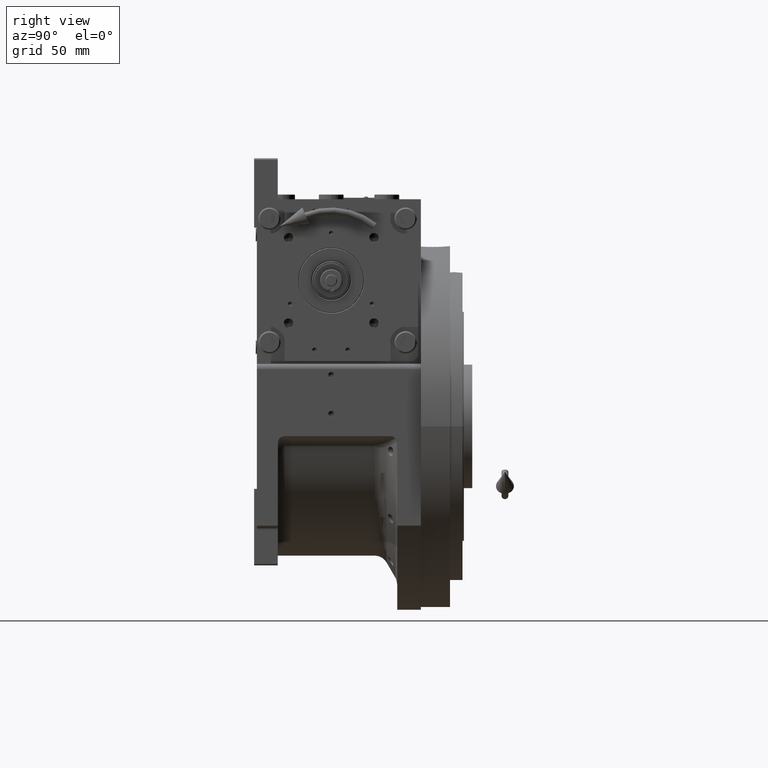
[diagram: clean part render]
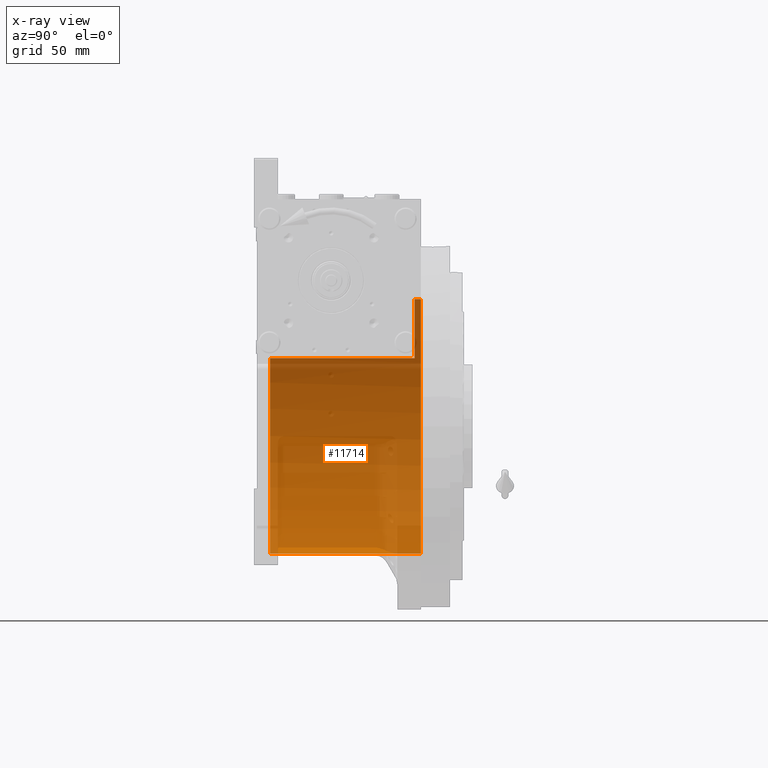
[diagram: x-ray — body ghosted, one internal face saturated and labeled with its STEP entity id]
A machine part, right view, then the same camera in x-ray: the body is ghosted and one INTERNAL B-rep face — a face not visible from any outside direction — is saturated and labeled: STEP entity #11714.
In plain terms, the highlighted cylindrical surface (partial cylindrical patch) has radius 91.5 mm, axis along (0, -1, 0).
Its self-contained STEP definition (entity closure, byte-faithful):
#89 = VERTEX_POINT ( 'NONE', #11666 ) ;
#1930 = DIRECTION ( 'NONE',  ( 0.000000000000000000, 0.000000000000000000, 1.000000000000000000 ) ) ;
#2423 = AXIS2_PLACEMENT_3D ( 'NONE', #13235, #28690, #1930 ) ;
#2748 = EDGE_CURVE ( 'NONE', #89, #67706, #63052, .T. ) ;
#2916 = CARTESIAN_POINT ( 'NONE',  ( -77.27386362800812947, 69.00000000000004263, 48.99999999999998579 ) ) ;
#4924 = ORIENTED_EDGE ( 'NONE', *, *, #24452, .F. ) ;
#5240 = CARTESIAN_POINT ( 'NONE',  ( 0.000000000000000000, 60.00000000000000000, 0.000000000000000000 ) ) ;
#6687 = VERTEX_POINT ( 'NONE', #7376 ) ;
#7376 = CARTESIAN_POINT ( 'NONE',  ( 1.120551821219827868E-14, 64.50000000000000000, 91.50000000000000000 ) ) ;
#7391 = CYLINDRICAL_SURFACE ( 'NONE', #20939, 91.50000000000000000 ) ;
#8017 = CIRCLE ( 'NONE', #47313, 91.50000000000000000 ) ;
#9991 = VECTOR ( 'NONE', #51401, 1000.000000000000000 ) ;
#11165 = CARTESIAN_POINT ( 'NONE',  ( 1.120551821219827868E-14, 60.00000000000000000, 91.50000000000000000 ) ) ;
#11666 = CARTESIAN_POINT ( 'NONE',  ( 0.000000000000000000, -44.00000000000000000, -91.50000000000000000 ) ) ;
#11714 = ADVANCED_FACE ( 'NONE', ( #48911 ), #7391, .F. ) ;
#13235 = CARTESIAN_POINT ( 'NONE',  ( 0.000000000000000000, -44.00000000000000000, 0.000000000000000000 ) ) ;
#20939 = AXIS2_PLACEMENT_3D ( 'NONE', #23207, #28500, #60119 ) ;
#21259 = VECTOR ( 'NONE', #67262, 1000.000000000000000 ) ;
#23207 = CARTESIAN_POINT ( 'NONE',  ( 0.000000000000000000, 69.00000000000004263, 0.000000000000000000 ) ) ;
#24030 = CARTESIAN_POINT ( 'NONE',  ( 0.000000000000000000, 64.50000000000000000, -91.50000000000000000 ) ) ;
#24452 = EDGE_CURVE ( 'NONE', #59586, #89, #59524, .T. ) ;
#24707 = LINE ( 'NONE', #2916, #21259 ) ;
#25153 = CARTESIAN_POINT ( 'NONE',  ( 0.000000000000000000, 64.50000000000000000, 0.000000000000000000 ) ) ;
#28500 = DIRECTION ( 'NONE',  ( 0.000000000000000000, -1.000000000000000000, 0.000000000000000000 ) ) ;
#28690 = DIRECTION ( 'NONE',  ( 0.000000000000000000, 1.000000000000000000, 0.000000000000000000 ) ) ;
#29980 = CARTESIAN_POINT ( 'NONE',  ( 1.120551821219827868E-14, 69.00000000000004263, 91.50000000000000000 ) ) ;
#30282 = VERTEX_POINT ( 'NONE', #32470 ) ;
#30408 = ORIENTED_EDGE ( 'NONE', *, *, #55609, .F. ) ;
#31141 = EDGE_LOOP ( 'NONE', ( #30408, #59172, #38333, #46496, #61209, #4924 ) ) ;
#32470 = CARTESIAN_POINT ( 'NONE',  ( -77.27386362800814368, 60.00000000000000000, 48.99999999999998579 ) ) ;
#34929 = AXIS2_PLACEMENT_3D ( 'NONE', #5240, #63973, #52731 ) ;
#37176 = CIRCLE ( 'NONE', #34929, 91.50000000000000000 ) ;
#38333 = ORIENTED_EDGE ( 'NONE', *, *, #54879, .F. ) ;
#42874 = EDGE_CURVE ( 'NONE', #6687, #60362, #66206, .T. ) ;
#43672 = CARTESIAN_POINT ( 'NONE',  ( -77.27386362800814368, -44.00000000000000000, 49.00000000000000000 ) ) ;
#44084 = DIRECTION ( 'NONE',  ( 0.000000000000000000, -1.000000000000000000, 0.000000000000000000 ) ) ;
#46496 = ORIENTED_EDGE ( 'NONE', *, *, #53131, .F. ) ;
#47313 = AXIS2_PLACEMENT_3D ( 'NONE', #25153, #68042, #55789 ) ;
#48911 = FACE_OUTER_BOUND ( 'NONE', #31141, .T. ) ;
#51401 = DIRECTION ( 'NONE',  ( 0.000000000000000000, -1.000000000000000000, 0.000000000000000000 ) ) ;
#52731 = DIRECTION ( 'NONE',  ( 1.776356839400250465E-15, 0.000000000000000000, -1.000000000000000000 ) ) ;
#52751 = VECTOR ( 'NONE', #44084, 1000.000000000000000 ) ;
#53131 = EDGE_CURVE ( 'NONE', #67706, #30282, #24707, .T. ) ;
#54879 = EDGE_CURVE ( 'NONE', #30282, #60362, #37176, .T. ) ;
#55609 = EDGE_CURVE ( 'NONE', #6687, #59586, #8017, .T. ) ;
#55789 = DIRECTION ( 'NONE',  ( 0.000000000000000000, 0.000000000000000000, 1.000000000000000000 ) ) ;
#58475 = CARTESIAN_POINT ( 'NONE',  ( 0.000000000000000000, 69.00000000000004263, -91.50000000000000000 ) ) ;
#59172 = ORIENTED_EDGE ( 'NONE', *, *, #42874, .T. ) ;
#59524 = LINE ( 'NONE', #58475, #52751 ) ;
#59586 = VERTEX_POINT ( 'NONE', #24030 ) ;
#60119 = DIRECTION ( 'NONE',  ( 0.000000000000000000, 0.000000000000000000, -1.000000000000000000 ) ) ;
#60362 = VERTEX_POINT ( 'NONE', #11165 ) ;
#61209 = ORIENTED_EDGE ( 'NONE', *, *, #2748, .F. ) ;
#63052 = CIRCLE ( 'NONE', #2423, 91.50000000000000000 ) ;
#63973 = DIRECTION ( 'NONE',  ( 0.000000000000000000, 1.000000000000000000, 0.000000000000000000 ) ) ;
#66206 = LINE ( 'NONE', #29980, #9991 ) ;
#67262 = DIRECTION ( 'NONE',  ( -0.000000000000000000, 1.000000000000000000, -0.000000000000000000 ) ) ;
#67706 = VERTEX_POINT ( 'NONE', #43672 ) ;
#68042 = DIRECTION ( 'NONE',  ( -0.000000000000000000, -1.000000000000000000, -0.000000000000000000 ) ) ;